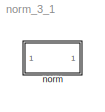
MODEL norm_3_1
KIND model
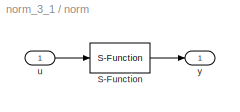
BLOCK [SubSystem] norm
  MinAlgLoopOccurrences = off
  Ports = [1, 1]
  RTWSystemCode = Auto
  TreatAsAtomicUnit = off
BLOCK [S-Function] norm/S-Function
  FunctionName = s_norm
  Ports = [1, 1]
BLOCK [Inport] norm/u
  IconDisplay = Port number
  LatchInput = off
  Port = 1
  PortDimensions = 3
BLOCK [Outport] norm/y
  BusOutputAsStruct = off
  IconDisplay = Port number
  PortDimensions = 1
LINE norm/S-Function:1 -> norm/y:1
LINE norm/u:1 -> norm/S-Function:1
